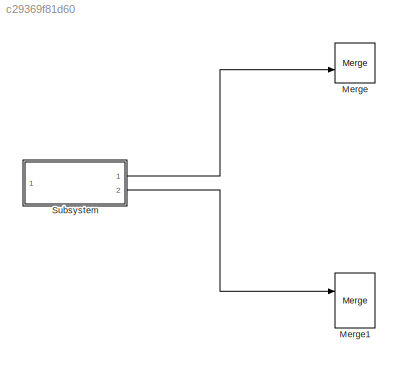
MODEL slx_c29369f81d60
KIND model
CONFIG AbsTol = auto
CONFIG EnableMultiTasking = off
CONFIG FixedStep = auto
CONFIG MaxStep = auto
CONFIG MinStep = auto
CONFIG RelTol = 1e-3
CONFIG SampleTimeConstraint = Unconstrained
CONFIG Solver = VariableStepAuto
CONFIG SolverName = VariableStepAuto
CONFIG StartTime = 0.0
CONFIG StopTime = 10.0
BLOCK [Merge] Merge
  Ports = [2, 1]
BLOCK [Merge] Merge1
  Ports = [2, 1]
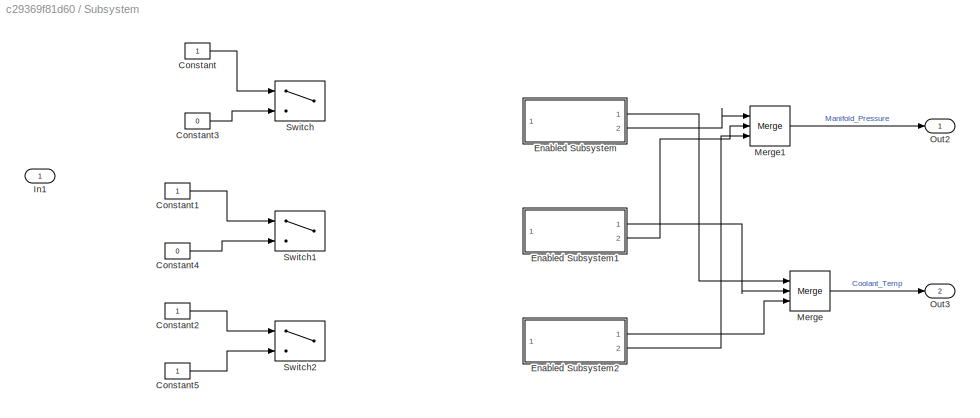
BLOCK [SubSystem] Subsystem
  Ports = [1, 2]
  RequestExecContextInheritance = off
BLOCK [Constant] Subsystem/Constant
BLOCK [Constant] Subsystem/Constant1
BLOCK [Constant] Subsystem/Constant2
BLOCK [Constant] Subsystem/Constant3
  Value = 0
BLOCK [Constant] Subsystem/Constant4
  Value = 0
BLOCK [Constant] Subsystem/Constant5
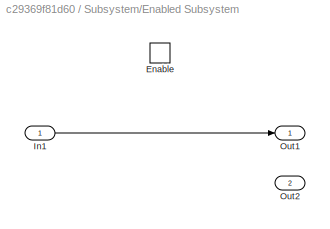
BLOCK [SubSystem] Subsystem/Enabled Subsystem
  Ports = [1, 2, 1]
  RequestExecContextInheritance = off
  TreatAsAtomicUnit = on
BLOCK [EnablePort] Subsystem/Enabled Subsystem/Enable
  Ports = []
BLOCK [Inport] Subsystem/Enabled Subsystem/In1
BLOCK [Outport] Subsystem/Enabled Subsystem/Out1
BLOCK [Outport] Subsystem/Enabled Subsystem/Out2
  Port = 2
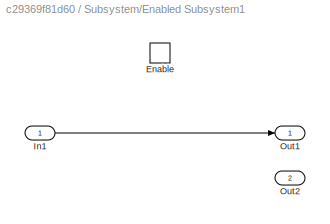
BLOCK [SubSystem] Subsystem/Enabled Subsystem1
  Ports = [1, 2, 1]
  RequestExecContextInheritance = off
  TreatAsAtomicUnit = on
BLOCK [EnablePort] Subsystem/Enabled Subsystem1/Enable
  Ports = []
BLOCK [Inport] Subsystem/Enabled Subsystem1/In1
BLOCK [Outport] Subsystem/Enabled Subsystem1/Out1
BLOCK [Outport] Subsystem/Enabled Subsystem1/Out2
  Port = 2
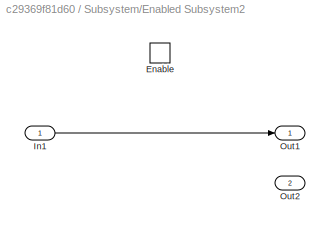
BLOCK [SubSystem] Subsystem/Enabled Subsystem2
  Ports = [1, 2, 1]
  RequestExecContextInheritance = off
  TreatAsAtomicUnit = on
BLOCK [EnablePort] Subsystem/Enabled Subsystem2/Enable
  Ports = []
BLOCK [Inport] Subsystem/Enabled Subsystem2/In1
BLOCK [Outport] Subsystem/Enabled Subsystem2/Out1
BLOCK [Outport] Subsystem/Enabled Subsystem2/Out2
  Port = 2
BLOCK [Inport] Subsystem/In1
BLOCK [Merge] Subsystem/Merge
  Inputs = 3
  Ports = [3, 1]
BLOCK [Merge] Subsystem/Merge1
  Inputs = 3
  Ports = [3, 1]
BLOCK [Outport] Subsystem/Out2
BLOCK [Outport] Subsystem/Out3
  Port = 2
BLOCK [Switch] Subsystem/Switch
  Criteria = u2 > Threshold
  InputSameDT = off
  SaturateOnIntegerOverflow = off
BLOCK [Switch] Subsystem/Switch1
  Criteria = u2 > Threshold
  InputSameDT = off
  SaturateOnIntegerOverflow = off
BLOCK [Switch] Subsystem/Switch2
  Criteria = u2 > Threshold
  InputSameDT = off
  SaturateOnIntegerOverflow = off
LINE Subsystem/Constant1:1 -> Subsystem/Switch1:1
LINE Subsystem/Constant2:1 -> Subsystem/Switch2:1
LINE Subsystem/Constant3:1 -> Subsystem/Switch:3
LINE Subsystem/Constant4:1 -> Subsystem/Switch1:3
LINE Subsystem/Constant5:1 -> Subsystem/Switch2:3
LINE Subsystem/Constant:1 -> Subsystem/Switch:1
LINE Subsystem/Enabled Subsystem/In1:1 -> Subsystem/Enabled Subsystem/Out1:1
LINE Subsystem/Enabled Subsystem1/In1:1 -> Subsystem/Enabled Subsystem1/Out1:1
LINE Subsystem/Enabled Subsystem1:1 -> Subsystem/Merge:2
LINE Subsystem/Enabled Subsystem1:2 -> Subsystem/Merge1:2
LINE Subsystem/Enabled Subsystem2/In1:1 -> Subsystem/Enabled Subsystem2/Out1:1
LINE Subsystem/Enabled Subsystem2:1 -> Subsystem/Merge:3
LINE Subsystem/Enabled Subsystem2:2 -> Subsystem/Merge1:3
LINE Subsystem/Enabled Subsystem:1 -> Subsystem/Merge:1
LINE Subsystem/Enabled Subsystem:2 -> Subsystem/Merge1:1
LINE Subsystem/Merge1:1 -> Subsystem/Out2:1
LINE Subsystem/Merge:1 -> Subsystem/Out3:1
LINE Subsystem:1 -> Merge:2
LINE Subsystem:2 -> Merge1:1
